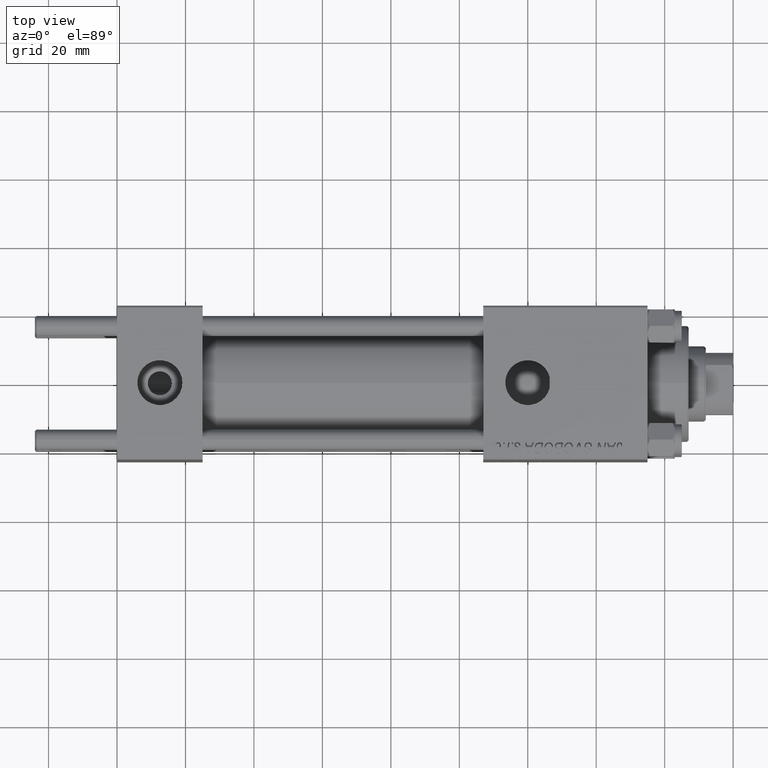
[diagram: clean part render]
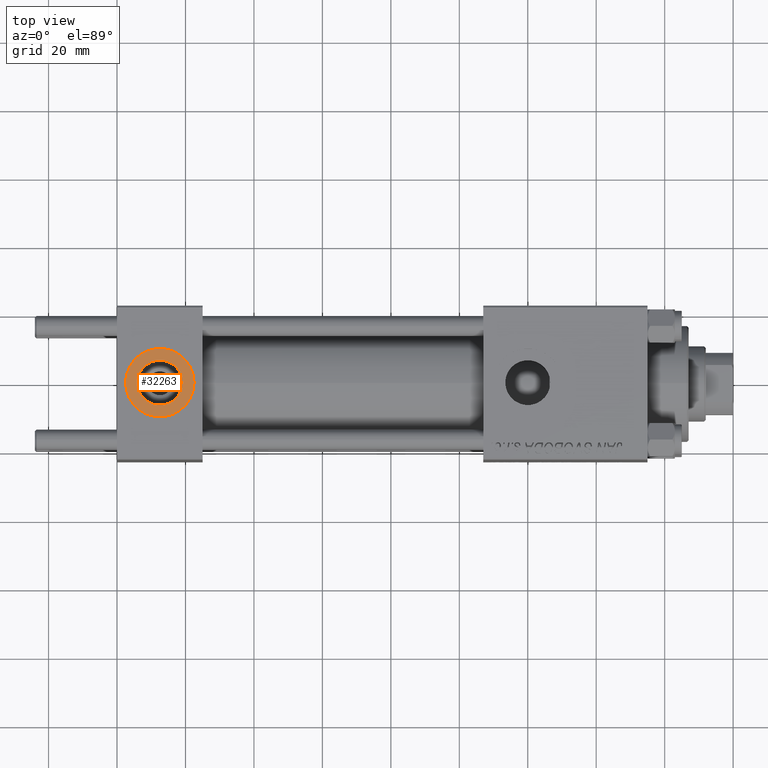
[diagram: same view with one face highlighted and labeled with its STEP entity id]
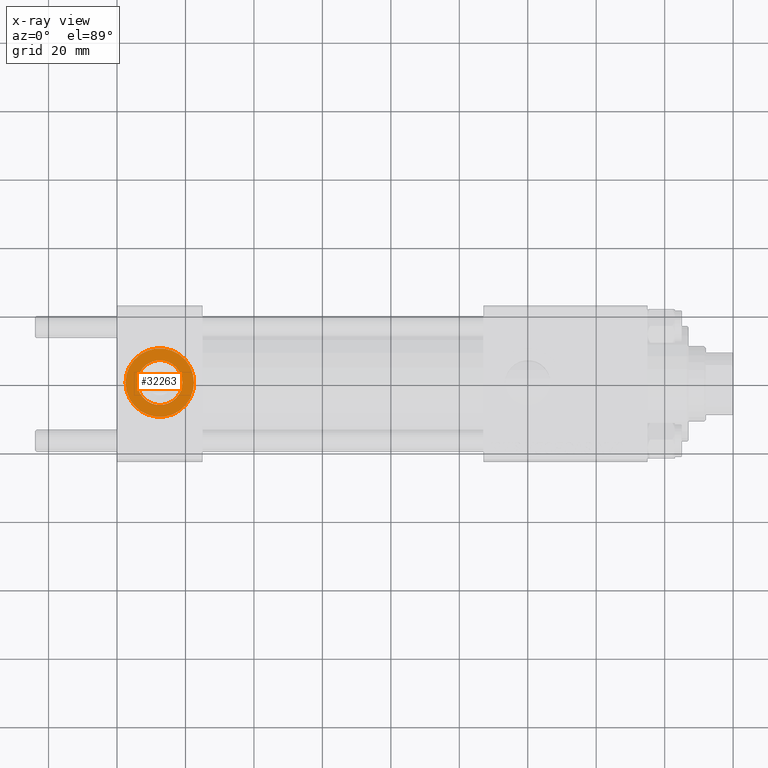
[diagram: x-ray of the same camera — body ghosted, the highlighted face saturated]
A machine part, top view. The second image highlights one B-rep face of the part: STEP entity #32263.
The next image is the same camera in x-ray: the body ghosted, the highlighted face saturated — about 0% of this face is hidden behind the body in this view.
In plain terms, the highlighted planar face has unit normal (0, 0, 1).
Its self-contained STEP definition (entity closure, byte-faithful):
#112 = DIRECTION ( 'NONE',  ( 1.000000000000000000, 0.000000000000000000, 0.000000000000000000 ) ) ;
#367 = DIRECTION ( 'NONE',  ( 0.000000000000000000, 0.000000000000000000, 1.000000000000000000 ) ) ;
#2370 = FACE_BOUND ( 'NONE', #29061, .T. ) ;
#5421 = CIRCLE ( 'NONE', #48824, 9.999999999999998224 ) ;
#5450 = AXIS2_PLACEMENT_3D ( 'NONE', #18855, #15077, #14820 ) ;
#6823 = ORIENTED_EDGE ( 'NONE', *, *, #48557, .F. ) ;
#7210 = CIRCLE ( 'NONE', #30563, 9.999999999999998224 ) ;
#7316 = EDGE_LOOP ( 'NONE', ( #44592, #28741 ) ) ;
#8770 = DIRECTION ( 'NONE',  ( 0.000000000000000000, 0.000000000000000000, 1.000000000000000000 ) ) ;
#9446 = CARTESIAN_POINT ( 'NONE',  ( 12.50000000000000000, -1.734723475976807094E-15, 22.30000000000000071 ) ) ;
#10152 = VERTEX_POINT ( 'NONE', #21226 ) ;
#11423 = ORIENTED_EDGE ( 'NONE', *, *, #40719, .F. ) ;
#11810 = CARTESIAN_POINT ( 'NONE',  ( 12.50000000000000000, -1.734723475976807094E-15, 22.30000000000000071 ) ) ;
#12442 = AXIS2_PLACEMENT_3D ( 'NONE', #9446, #43981, #25073 ) ;
#14223 = VERTEX_POINT ( 'NONE', #49205 ) ;
#14820 = DIRECTION ( 'NONE',  ( 1.000000000000000000, 0.000000000000000000, 0.000000000000000000 ) ) ;
#15077 = DIRECTION ( 'NONE',  ( 0.000000000000000000, 0.000000000000000000, 1.000000000000000000 ) ) ;
#15241 = AXIS2_PLACEMENT_3D ( 'NONE', #49612, #34485, #45825 ) ;
#17237 = CARTESIAN_POINT ( 'NONE',  ( 22.50000000000000000, -1.734723475976807094E-15, 22.30000000000000071 ) ) ;
#17270 = PLANE ( 'NONE',  #12442 ) ;
#18008 = FACE_OUTER_BOUND ( 'NONE', #7316, .T. ) ;
#18855 = CARTESIAN_POINT ( 'NONE',  ( 12.50000000000000000, -1.734723475976807094E-15, 22.30000000000000071 ) ) ;
#19540 = CARTESIAN_POINT ( 'NONE',  ( 2.500000000000003997, -5.100766768294543310E-16, 22.30000000000000071 ) ) ;
#20183 = EDGE_CURVE ( 'NONE', #47945, #37709, #5421, .T. ) ;
#21226 = CARTESIAN_POINT ( 'NONE',  ( 19.07999999999999829, -1.734723475976807094E-15, 22.30000000000000071 ) ) ;
#23995 = CIRCLE ( 'NONE', #5450, 6.579999999999999183 ) ;
#24098 = CIRCLE ( 'NONE', #15241, 6.579999999999999183 ) ;
#25073 = DIRECTION ( 'NONE',  ( 1.000000000000000000, 0.000000000000000000, -0.000000000000000000 ) ) ;
#28251 = EDGE_CURVE ( 'NONE', #37709, #47945, #7210, .T. ) ;
#28741 = ORIENTED_EDGE ( 'NONE', *, *, #28251, .T. ) ;
#29061 = EDGE_LOOP ( 'NONE', ( #6823, #11423 ) ) ;
#30563 = AXIS2_PLACEMENT_3D ( 'NONE', #11810, #8770, #42810 ) ;
#32263 = ADVANCED_FACE ( 'NONE', ( #2370, #18008 ), #17270, .T. ) ;
#34485 = DIRECTION ( 'NONE',  ( 0.000000000000000000, 0.000000000000000000, 1.000000000000000000 ) ) ;
#37709 = VERTEX_POINT ( 'NONE', #19540 ) ;
#40719 = EDGE_CURVE ( 'NONE', #14223, #10152, #23995, .T. ) ;
#42487 = CARTESIAN_POINT ( 'NONE',  ( 12.50000000000000000, -1.734723475976807094E-15, 22.30000000000000071 ) ) ;
#42810 = DIRECTION ( 'NONE',  ( 1.000000000000000000, 0.000000000000000000, 0.000000000000000000 ) ) ;
#43981 = DIRECTION ( 'NONE',  ( 0.000000000000000000, 0.000000000000000000, 1.000000000000000000 ) ) ;
#44592 = ORIENTED_EDGE ( 'NONE', *, *, #20183, .T. ) ;
#45825 = DIRECTION ( 'NONE',  ( 1.000000000000000000, 0.000000000000000000, 0.000000000000000000 ) ) ;
#47945 = VERTEX_POINT ( 'NONE', #17237 ) ;
#48557 = EDGE_CURVE ( 'NONE', #10152, #14223, #24098, .T. ) ;
#48824 = AXIS2_PLACEMENT_3D ( 'NONE', #42487, #367, #112 ) ;
#49205 = CARTESIAN_POINT ( 'NONE',  ( 5.920000000000002593, -9.289058821378490386E-16, 22.30000000000000071 ) ) ;
#49612 = CARTESIAN_POINT ( 'NONE',  ( 12.50000000000000000, -1.734723475976807094E-15, 22.30000000000000071 ) ) ;